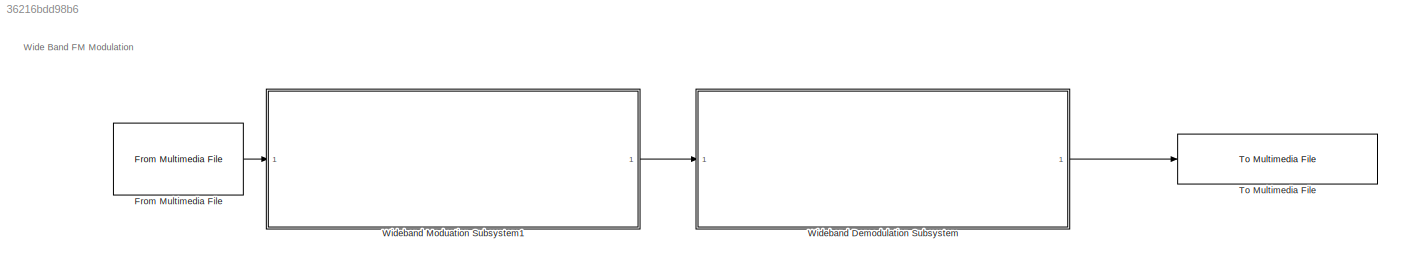
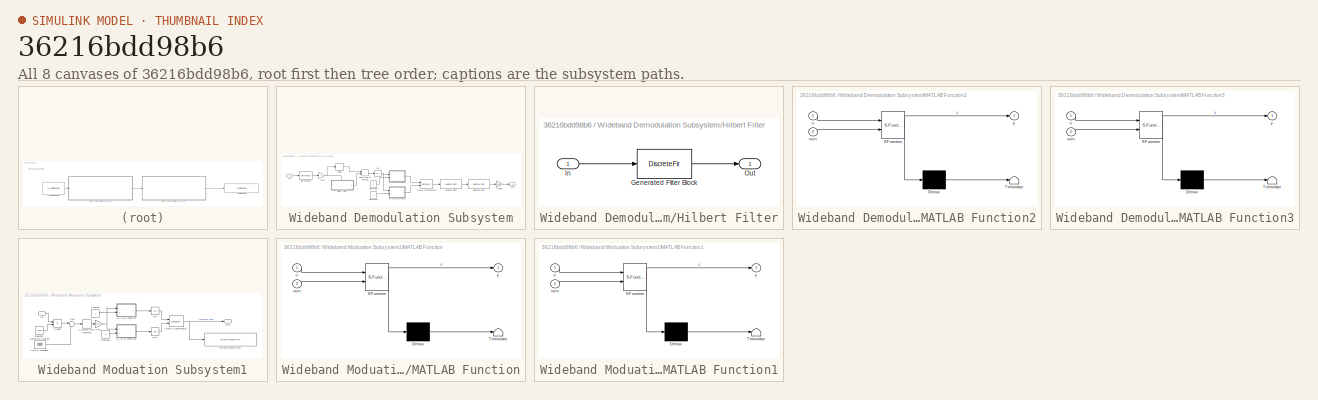
[diagram: thumbnail index - all 8 canvases of the model, root first then tree order]
MODEL slx_36216bdd98b6
KIND model
CONFIG AbsTol = auto
CONFIG EnableMultiTasking = off
CONFIG FixedStep = auto
CONFIG MaxStep = auto
CONFIG MinStep = auto
CONFIG RelTol = 1e-3
CONFIG SampleTimeConstraint = Unconstrained
CONFIG SolverName = VariableStepAuto
CONFIG StartTime = 0.0
CONFIG StopTime = 10.0
BLOCK [Reference] From Multimedia File  REF=dspvision/From Multimedia File
  Ports = [0, 1]
  SourceBlock = dspvision/From Multimedia File
  SourceProductBaseCode = DS,HW,VP
  SourceType = From Multimedia File
BLOCK [Reference] To Multimedia File  REF=dspvision/To Multimedia File
  Ports = [1]
  SourceBlock = dspvision/To Multimedia File
  SourceProductBaseCode = DS,HW,VP
  SourceType = To Multimedia File
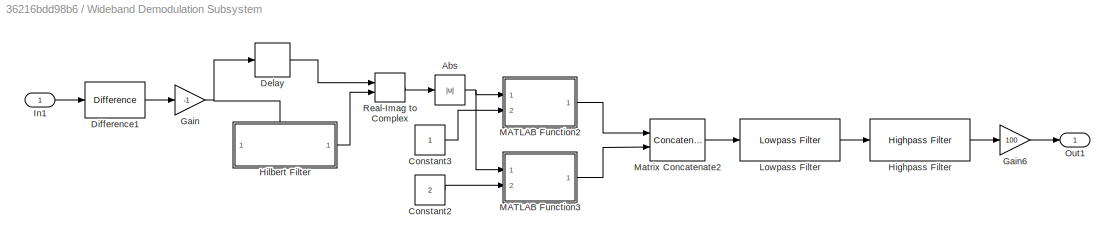
BLOCK [SubSystem] Wideband Demodulation Subsystem
  Ports = [1, 1]
  RequestExecContextInheritance = off
BLOCK [Abs] Wideband Demodulation Subsystem/Abs
  SaturateOnIntegerOverflow = off
BLOCK [Constant] Wideband Demodulation Subsystem/Constant2
  Value = 2
BLOCK [Constant] Wideband Demodulation Subsystem/Constant3
BLOCK [Delay] Wideband Demodulation Subsystem/Delay
  DelayLength = 16
  InitialCondition = 0
  InputPortMap = u0
  Ports = [1, 1]
BLOCK [Reference] Wideband Demodulation Subsystem/Difference1  REF=simulink/Discrete/Difference
  Ports = [1, 1]
  SourceBlock = simulink/Discrete/Difference
  SourceProductBaseCode = SL
  SourceType = Difference
BLOCK [Gain] Wideband Demodulation Subsystem/Gain
  Gain = -1
BLOCK [Gain] Wideband Demodulation Subsystem/Gain6
  Gain = 100
BLOCK [Reference] Wideband Demodulation Subsystem/Highpass Filter  REF=dspfdesign/Highpass Filter
  Ports = [1, 1]
  SourceBlock = dspfdesign/Highpass Filter
  SourceProductBaseCode = DS
  SourceType = dsp.HighpassFilter
BLOCK [SubSystem] Wideband Demodulation Subsystem/Hilbert Filter
  CopyFcn = fdesignblkfcn(gcbh, {'CopyFcn'});
  DialogController = fdesignblkfcn
  InitFcn = fdesignblkfcn(gcbh, {'InitFcn'});
  PortSchema = {"entries":[{"content":{"sides":[{"content":{"connectorIds":[]},"type":"ConnectorPlacement.EquallySpacedRectSide","uuid":"1b2c5162-6e24-491e-b750-d7b3833c39fb"},{"content":{"connectorIds":["Out1"],"side":"RIGHT"},"type":"ConnectorPlacement.EquallySpacedRectSide","uuid":"107a7a6b-a530-42e8-897d-8cd9bd702615"},{"content":{"connectorIds":["In1"],"side":"TOP"},"type":"ConnectorPlacement.EquallySpacedR...<+384ch>
  Ports = [1, 1]
  RequestExecContextInheritance = off
  UserDataPersistent = on
BLOCK [DiscreteFir] Wideband Demodulation Subsystem/Hilbert Filter/Generated Filter Block
  Coefficients = [4.54486433486460064e-05 -0.0319136045611683877 -3.31277815638836425e-05 -0.026047835887445539 -1.5942717018548882e-06 -0.0373284021357406792 3.46942587572346368e-06 -0.0531107459937531778 -1.03378562696822675e-06 -0.0766995375013513336 -5.96683448031529607e-06 -0.116853826766850133 1.66624629077336266e-05 -0.205805810057241412 -1.89302802970533866e-05 -0.634472629392063503 0 0.634472629392063503 ...<+345ch>
  InputPortMap = u0
  InputProcessing = Columns as channels (frame based)
  OutputPortMap = o0
  Ports = [1, 1]
  Tag = BlockMethodSubSystem
BLOCK [Inport] Wideband Demodulation Subsystem/Hilbert Filter/In
BLOCK [Outport] Wideband Demodulation Subsystem/Hilbert Filter/Out
  VectorParamsAs1DForOutWhenUnconnected = off
BLOCK [Inport] Wideband Demodulation Subsystem/In1
BLOCK [Reference] Wideband Demodulation Subsystem/Lowpass Filter  REF=dspfdesign/Lowpass Filter
  Ports = [1, 1]
  SourceBlock = dspfdesign/Lowpass Filter
  SourceProductBaseCode = DS
  SourceType = dsp.LowpassFilter
BLOCK [SubSystem] Wideband Demodulation Subsystem/MATLAB Function2
  ErrorFcn = Stateflow.Translate.translate
  PermitHierarchicalResolution = ExplicitOnly
  Ports = [2, 1]
  RequestExecContextInheritance = off
  SFBlockType = MATLAB Function
  TreatAsAtomicUnit = on
BLOCK [Demux] Wideband Demodulation Subsystem/MATLAB Function2/ Demux 
  Outputs = 1
  Ports = [1, 1]
BLOCK [S-Function] Wideband Demodulation Subsystem/MATLAB Function2/ SFunction 
  EnableBusSupport = on
  FunctionName = sf_sfun
  PortCounts = [2 2]
  Ports = [2, 2]
  SFcnIsStateOwnerBlock = off
  SFunctionDeploymentMode = off
  Tag = Stateflow S-Function 3
BLOCK [Terminator] Wideband Demodulation Subsystem/MATLAB Function2/ Terminator 
BLOCK [Inport] Wideband Demodulation Subsystem/MATLAB Function2/num
  Port = 2
BLOCK [Inport] Wideband Demodulation Subsystem/MATLAB Function2/u
BLOCK [Outport] Wideband Demodulation Subsystem/MATLAB Function2/y
BLOCK [SubSystem] Wideband Demodulation Subsystem/MATLAB Function3
  ErrorFcn = Stateflow.Translate.translate
  PermitHierarchicalResolution = ExplicitOnly
  Ports = [2, 1]
  RequestExecContextInheritance = off
  SFBlockType = MATLAB Function
  TreatAsAtomicUnit = on
BLOCK [Demux] Wideband Demodulation Subsystem/MATLAB Function3/ Demux 
  Outputs = 1
  Ports = [1, 1]
BLOCK [S-Function] Wideband Demodulation Subsystem/MATLAB Function3/ SFunction 
  EnableBusSupport = on
  FunctionName = sf_sfun
  PortCounts = [2 2]
  Ports = [2, 2]
  SFcnIsStateOwnerBlock = off
  SFunctionDeploymentMode = off
  Tag = Stateflow S-Function 4
BLOCK [Terminator] Wideband Demodulation Subsystem/MATLAB Function3/ Terminator 
BLOCK [Inport] Wideband Demodulation Subsystem/MATLAB Function3/num
  Port = 2
BLOCK [Inport] Wideband Demodulation Subsystem/MATLAB Function3/u
BLOCK [Outport] Wideband Demodulation Subsystem/MATLAB Function3/y
BLOCK [Concatenate] Wideband Demodulation Subsystem/Matrix Concatenate2
  ConcatenateDimension = 2
  Mode = Multidimensional array
  Ports = [2, 1]
BLOCK [Outport] Wideband Demodulation Subsystem/Out1
BLOCK [RealImagToComplex] Wideband Demodulation Subsystem/Real-Imag to Complex
  Ports = [2, 1]
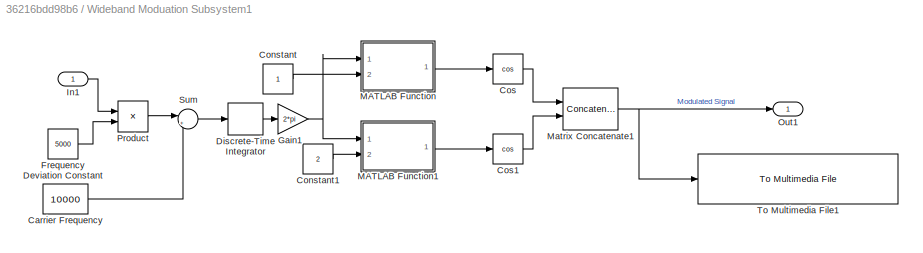
BLOCK [SubSystem] Wideband Moduation Subsystem1
  Ports = [1, 1]
  RequestExecContextInheritance = off
BLOCK [Constant] Wideband Moduation Subsystem1/Carrier Frequency
  Value = 10000
BLOCK [Constant] Wideband Moduation Subsystem1/Constant
BLOCK [Constant] Wideband Moduation Subsystem1/Constant1
  Value = 2
BLOCK [Trigonometry] Wideband Moduation Subsystem1/Cos
  Operator = cos
  Ports = [1, 1]
BLOCK [Trigonometry] Wideband Moduation Subsystem1/Cos1
  Operator = cos
  Ports = [1, 1]
BLOCK [DiscreteIntegrator] Wideband Moduation Subsystem1/Discrete-Time Integrator
  ICPrevOutput = DiscIntNeverNeededParam
  ICPrevScaledInput = DiscIntNeverNeededParam
  InitialConditionSetting = Auto
  Ports = [1, 1]
  SampleTime = -1
BLOCK [Constant] Wideband Moduation Subsystem1/Frequency Deviation Constant
  Value = 5000
BLOCK [Gain] Wideband Moduation Subsystem1/Gain1
  Gain = 2*pi
BLOCK [Inport] Wideband Moduation Subsystem1/In1
BLOCK [SubSystem] Wideband Moduation Subsystem1/MATLAB Function
  ErrorFcn = Stateflow.Translate.translate
  PermitHierarchicalResolution = ExplicitOnly
  Ports = [2, 1]
  RequestExecContextInheritance = off
  SFBlockType = MATLAB Function
  TreatAsAtomicUnit = on
BLOCK [Demux] Wideband Moduation Subsystem1/MATLAB Function/ Demux 
  Outputs = 1
  Ports = [1, 1]
BLOCK [S-Function] Wideband Moduation Subsystem1/MATLAB Function/ SFunction 
  EnableBusSupport = on
  FunctionName = sf_sfun
  PortCounts = [2 2]
  Ports = [2, 2]
  SFcnIsStateOwnerBlock = off
  SFunctionDeploymentMode = off
  Tag = Stateflow S-Function 2
BLOCK [Terminator] Wideband Moduation Subsystem1/MATLAB Function/ Terminator 
BLOCK [Inport] Wideband Moduation Subsystem1/MATLAB Function/num
  Port = 2
BLOCK [Inport] Wideband Moduation Subsystem1/MATLAB Function/u
BLOCK [Outport] Wideband Moduation Subsystem1/MATLAB Function/y
BLOCK [SubSystem] Wideband Moduation Subsystem1/MATLAB Function1
  ErrorFcn = Stateflow.Translate.translate
  PermitHierarchicalResolution = ExplicitOnly
  Ports = [2, 1]
  RequestExecContextInheritance = off
  SFBlockType = MATLAB Function
  TreatAsAtomicUnit = on
BLOCK [Demux] Wideband Moduation Subsystem1/MATLAB Function1/ Demux 
  Outputs = 1
  Ports = [1, 1]
BLOCK [S-Function] Wideband Moduation Subsystem1/MATLAB Function1/ SFunction 
  EnableBusSupport = on
  FunctionName = sf_sfun
  PortCounts = [2 2]
  Ports = [2, 2]
  SFcnIsStateOwnerBlock = off
  SFunctionDeploymentMode = off
  Tag = Stateflow S-Function 1
BLOCK [Terminator] Wideband Moduation Subsystem1/MATLAB Function1/ Terminator 
BLOCK [Inport] Wideband Moduation Subsystem1/MATLAB Function1/num
  Port = 2
BLOCK [Inport] Wideband Moduation Subsystem1/MATLAB Function1/u
BLOCK [Outport] Wideband Moduation Subsystem1/MATLAB Function1/y
BLOCK [Concatenate] Wideband Moduation Subsystem1/Matrix Concatenate1
  ConcatenateDimension = 2
  Mode = Multidimensional array
  Ports = [2, 1]
BLOCK [Outport] Wideband Moduation Subsystem1/Out1
BLOCK [Product] Wideband Moduation Subsystem1/Product
  Ports = [2, 1]
BLOCK [Sum] Wideband Moduation Subsystem1/Sum
  Inputs = |++
  Ports = [2, 1]
BLOCK [Reference] Wideband Moduation Subsystem1/To Multimedia File1  REF=dspvision/To Multimedia File
  Ports = [1]
  SourceBlock = dspvision/To Multimedia File
  SourceProductBaseCode = DS,HW,VP
  SourceType = To Multimedia File
ANNOTATION (root): Wide Band FM Modulation
LINE From Multimedia File:1 -> Wideband Moduation Subsystem1:1
NET Wideband Demodulation Subsystem/Abs:1 -> Wideband Demodulation Subsystem/MATLAB Function2:1, Wideband Demodulation Subsystem/MATLAB Function3:1
LINE Wideband Demodulation Subsystem/Constant2:1 -> Wideband Demodulation Subsystem/MATLAB Function3:2
LINE Wideband Demodulation Subsystem/Constant3:1 -> Wideband Demodulation Subsystem/MATLAB Function2:2
LINE Wideband Demodulation Subsystem/Delay:1 -> Wideband Demodulation Subsystem/Real-Imag to Complex:1
LINE Wideband Demodulation Subsystem/Difference1:1 -> Wideband Demodulation Subsystem/Gain:1
LINE Wideband Demodulation Subsystem/Gain6:1 -> Wideband Demodulation Subsystem/Out1:1
NET Wideband Demodulation Subsystem/Gain:1 -> Wideband Demodulation Subsystem/Delay:1, Wideband Demodulation Subsystem/Hilbert Filter:1
LINE Wideband Demodulation Subsystem/Highpass Filter:1 -> Wideband Demodulation Subsystem/Gain6:1
LINE Wideband Demodulation Subsystem/Hilbert Filter:1 -> Wideband Demodulation Subsystem/Real-Imag to Complex:2
LINE Wideband Demodulation Subsystem/In1:1 -> Wideband Demodulation Subsystem/Difference1:1
LINE Wideband Demodulation Subsystem/Lowpass Filter:1 -> Wideband Demodulation Subsystem/Highpass Filter:1
LINE Wideband Demodulation Subsystem/MATLAB Function2:1 -> Wideband Demodulation Subsystem/Matrix Concatenate2:1
LINE Wideband Demodulation Subsystem/MATLAB Function3:1 -> Wideband Demodulation Subsystem/Matrix Concatenate2:2
LINE Wideband Demodulation Subsystem/Matrix Concatenate2:1 -> Wideband Demodulation Subsystem/Lowpass Filter:1
LINE Wideband Demodulation Subsystem/Real-Imag to Complex:1 -> Wideband Demodulation Subsystem/Abs:1
LINE Wideband Demodulation Subsystem:1 -> To Multimedia File:1
LINE Wideband Moduation Subsystem1/Carrier Frequency:1 -> Wideband Moduation Subsystem1/Sum:2
LINE Wideband Moduation Subsystem1/Constant1:1 -> Wideband Moduation Subsystem1/MATLAB Function1:2
LINE Wideband Moduation Subsystem1/Constant:1 -> Wideband Moduation Subsystem1/MATLAB Function:2
LINE Wideband Moduation Subsystem1/Cos1:1 -> Wideband Moduation Subsystem1/Matrix Concatenate1:2
LINE Wideband Moduation Subsystem1/Cos:1 -> Wideband Moduation Subsystem1/Matrix Concatenate1:1
LINE Wideband Moduation Subsystem1/Discrete-Time Integrator:1 -> Wideband Moduation Subsystem1/Gain1:1
LINE Wideband Moduation Subsystem1/Frequency Deviation Constant:1 -> Wideband Moduation Subsystem1/Product:2
NET Wideband Moduation Subsystem1/Gain1:1 -> Wideband Moduation Subsystem1/MATLAB Function1:1, Wideband Moduation Subsystem1/MATLAB Function:1
LINE Wideband Moduation Subsystem1/In1:1 -> Wideband Moduation Subsystem1/Product:1
LINE Wideband Moduation Subsystem1/MATLAB Function1:1 -> Wideband Moduation Subsystem1/Cos1:1
LINE Wideband Moduation Subsystem1/MATLAB Function:1 -> Wideband Moduation Subsystem1/Cos:1
NET Wideband Moduation Subsystem1/Matrix Concatenate1:1 -> Wideband Moduation Subsystem1/Out1:1, Wideband Moduation Subsystem1/To Multimedia File1:1
LINE Wideband Moduation Subsystem1/Product:1 -> Wideband Moduation Subsystem1/Sum:1
LINE Wideband Moduation Subsystem1/Sum:1 -> Wideband Moduation Subsystem1/Discrete-Time Integrator:1
LINE Wideband Moduation Subsystem1:1 -> Wideband Demodulation Subsystem:1
note: NET lines group one-source signal fan-out (src -> all destinations, sorted); 1:1 wires keep LINE
CHART Wideband Moduation Subsystem1/MATLAB Function states=1 transitions=1
  STATE_LABEL 'eML_blk_kernel()'
  STATE_LABEL 'SCRIPT:\nfunction y = split(u,num)\n\ny = u(:,num);\n'
CHART Wideband Demodulation Subsystem/MATLAB Function2 states=1 transitions=1
  STATE_LABEL 'eML_blk_kernel()'
  STATE_LABEL 'SCRIPT:\nfunction y = split(u,num)\n\ny = u(:,num);\n'
CHART Wideband Demodulation Subsystem/MATLAB Function3 states=1 transitions=1
  STATE_LABEL 'eML_blk_kernel()'
  STATE_LABEL 'SCRIPT:\nfunction y = split(u,num)\n\ny = u(:,num);\n'
CHART Wideband Moduation Subsystem1/MATLAB Function1 states=1 transitions=1
  STATE_LABEL 'eML_blk_kernel()'
  STATE_LABEL 'SCRIPT:\nfunction y = split(u,num)\n\ny = u(:,num);\n'
CHART  states=0 transitions=0
CHART  states=0 transitions=0
CHART  states=0 transitions=0
CHART  states=0 transitions=0
